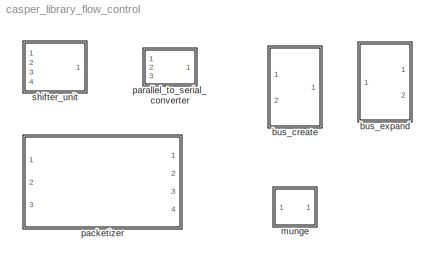
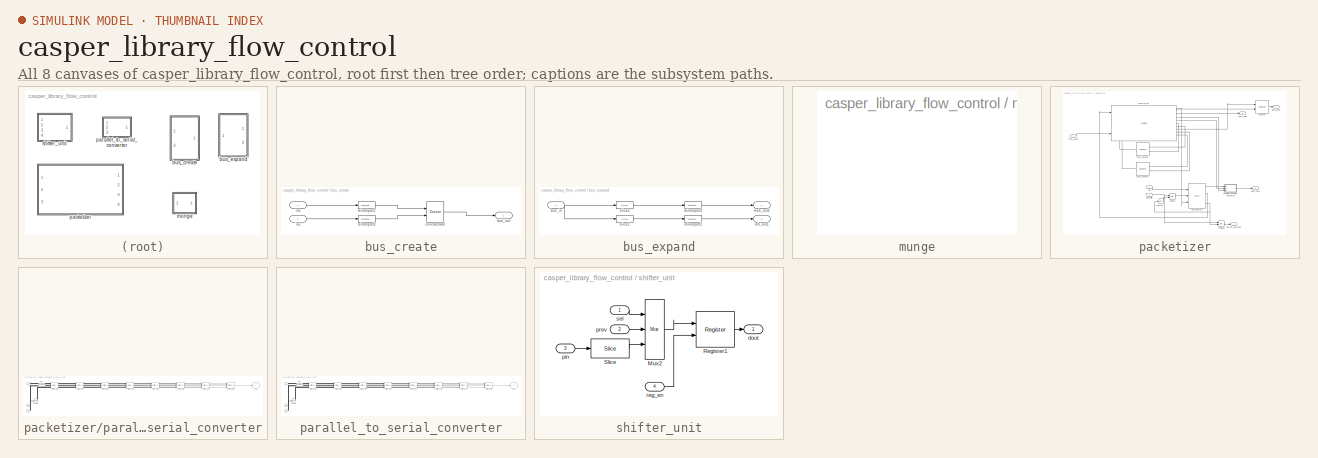
[diagram: thumbnail index - all 8 canvases of the model, root first then tree order]
MODEL casper_library_flow_control
KIND library
BLOCK [SubSystem] bus_create
  FunctionWithSeparateData = off
  MaskEnableString = on
  MaskHideContents = off
  MaskIconFrame = on
  MaskIconOpaque = on
  MaskIconRotate = none
  MaskIconUnits = autoscale
  MaskInitialization = bus_create_init(gcb,...\n    'inputNum', inputNum);
  MaskPromptString = Number of inputs:
  MaskStyleString = edit
  MaskToolTipString = on
  MaskTunableValueString = on
  MaskType = bus_create
  MaskValueString = 2
  MaskVariables = inputNum=@1;
  MaskVisibilityString = on
  MinAlgLoopOccurrences = off
  Opaque = off
  Ports = [2, 1]
  PropExecContextOutsideSubsystem = off
  RTWSystemCode = Auto
  UserData = DataTag0
  UserDataPersistent = on
BLOCK [Outport] bus_create/bus_out
  IconDisplay = Port number
BLOCK [Reference] bus_create/concatenate  REF=xbsIndex_r4/Concat
  Ports = [2, 1]
  SourceBlock = xbsIndex_r4/Concat
  SourceType = Xilinx Bus Concatenator Block
  block_type = concat
  block_version = 11.4
  dbl_ovrd = off
  has_advanced_control = 0
  infoedit = Concatenates two or more inputs.  Output will be cast to an unsigned value with the binary point at zero.
  num_inputs = 2
  sg_icon_stat = 50,60,2,1,white,blue,0,16398980,right,,[ ],[ ]
  sg_mask_display = fprintf('','COMMENT: begin icon graphics');\npatch([0 50 50 0 0 ],[0 0 60 60 0 ],[0.77 0.82 0.91 ]);\nplot([0 50 50 0 0 ],[0 0 60 60 0 ]);\npatch([9.425 19.54 26.54 33.54 40.54 26.54 16.425 9.425 ],[37.77 37.77 44.77 37.77 44.77 44.77 44.77 37.77 ],[1 1 1 ]);\npatch([16.425 26.54 19.54 9.425 16.425 ],[30.77 30.77 37.77 37.77 30.77 ],[0.931 0.946 0.973 ]);\npatch([9.425 19.54 26.54 16.425 9.425 ],[...<+435ch>
  sggui_pos = -1,-1,-1,-1
BLOCK [Inport] bus_create/in1
  IconDisplay = Port number
BLOCK [Inport] bus_create/in2
  IconDisplay = Port number
  Port = 2
BLOCK [Reference] bus_create/reinterpret1  REF=xbsIndex_r4/Reinterpret
  Ports = [1, 1]
  SourceBlock = xbsIndex_r4/Reinterpret
  SourceType = Xilinx Type Reinterpreter Block
  arith_type = Unsigned
  bin_pt = 0
  block_type = reinterpret
  block_version = 11.4
  force_arith_type = on
  force_bin_pt = on
  has_advanced_control = 0
  infoedit = Changes signal type without altering the binary representation.   You can changed the signal between signed and unsigned, and relocate the binary point.<br><br>Hardware notes: In hardware this block costs nothing.<br><br>Example:  Suppose the input is 6 bits wide, signed, with 2 fractional bits, and the output is forced to unsigned with 0 fractional bits.  Then an input of -2.0 (1110.00 in binary ...<+59ch>
  sg_icon_stat = 50,20,1,1,white,blue,0,6b04d0b0,right,,[ ],[ ]
  sg_mask_display = fprintf('','COMMENT: begin icon graphics');\npatch([0 50 50 0 0 ],[0 0 20 20 0 ],[0.77 0.82 0.91 ]);\nplot([0 50 50 0 0 ],[0 0 20 20 0 ]);\npatch([20.55 23.44 25.44 27.44 29.44 25.44 22.55 20.55 ],[12.22 12.22 14.22 12.22 14.22 14.22 14.22 12.22 ],[1 1 1 ]);\npatch([22.55 25.44 23.44 20.55 22.55 ],[10.22 10.22 12.22 12.22 10.22 ],[0.931 0.946 0.973 ]);\npatch([20.55 23.44 25.44 22.55 20.55 ],[8.22...<+314ch>
  sggui_pos = -1,-1,-1,-1
BLOCK [Reference] bus_create/reinterpret2  REF=xbsIndex_r4/Reinterpret
  Ports = [1, 1]
  SourceBlock = xbsIndex_r4/Reinterpret
  SourceType = Xilinx Type Reinterpreter Block
  arith_type = Unsigned
  bin_pt = 0
  block_type = reinterpret
  block_version = 11.4
  force_arith_type = on
  force_bin_pt = on
  has_advanced_control = 0
  infoedit = Changes signal type without altering the binary representation.   You can changed the signal between signed and unsigned, and relocate the binary point.<br><br>Hardware notes: In hardware this block costs nothing.<br><br>Example:  Suppose the input is 6 bits wide, signed, with 2 fractional bits, and the output is forced to unsigned with 0 fractional bits.  Then an input of -2.0 (1110.00 in binary ...<+59ch>
  sg_icon_stat = 50,20,1,1,white,blue,0,6b04d0b0,right,,[ ],[ ]
  sg_mask_display = fprintf('','COMMENT: begin icon graphics');\npatch([0 50 50 0 0 ],[0 0 20 20 0 ],[0.77 0.82 0.91 ]);\nplot([0 50 50 0 0 ],[0 0 20 20 0 ]);\npatch([20.55 23.44 25.44 27.44 29.44 25.44 22.55 20.55 ],[12.22 12.22 14.22 12.22 14.22 14.22 14.22 12.22 ],[1 1 1 ]);\npatch([22.55 25.44 23.44 20.55 22.55 ],[10.22 10.22 12.22 12.22 10.22 ],[0.931 0.946 0.973 ]);\npatch([20.55 23.44 25.44 22.55 20.55 ],[8.22...<+314ch>
  sggui_pos = 281,224,671,460
BLOCK [SubSystem] bus_expand
  AttributesFormatString = 2 outputs
  FunctionWithSeparateData = off
  MaskCallbackString = bus_expand_callback();||bus_expand_callback();||||bus_expand_callback();||
  MaskDescription = Expands a 'bus' made using a bus_create or Xilinx\nconcat block.\nThe input will be divided into the specified number\nof outputs with the specified arithmetic types.\nDivisions are made from most significant bit.
  MaskEnableString = on,on,on,on,on,on,on,off,off
  MaskHideContents = off
  MaskIconFrame = on
  MaskIconOpaque = off
  MaskIconRotate = none
  MaskIconUnits = autoscale
  MaskInitialization = bus_expand_init(gcb,...\n    'mode', mode, ...\n    'outputNum', outputNum, ...\n    'outputWidth', outputWidth, ...\n    'outputBinaryPt', outputBinaryPt, ...\n    'outputArithmeticType', outputArithmeticType, ...\n    'show_format', show_format, ...\n    'outputToWorkspace', outputToWorkspace, ...\n    'variablePrefix', variablePrefix, ...\n    'outputToModelAsWell', outputToModelAsWell);
  MaskPromptString = Mode:|Number of outputs:|Output width:|Output binary point position:|Output arithmetic type (ufix=0, fix=1, bool=2):|Print format string?|Output to workspace?|Variable name prefix:|Output to model as well?
  MaskStyleString = popup(divisions of equal size|divisions of arbitrary size),edit,edit,edit,edit,checkbox,checkbox,edit,checkbox
  MaskToolTipString = on,on,on,on,on,on,on,on,on
  MaskTunableValueString = on,on,on,on,on,on,on,on,on
  MaskType = bus_expand
  MaskValueString = divisions of equal size|2|16|0|0|off|off|out|on
  MaskVariables = mode=&1;outputNum=@2;outputWidth=@3;outputBinaryPt=@4;outputArithmeticType=@5;show_format=&6;outputToWorkspace=&7;variablePrefix=&8;outputToModelAsWell=&9;
  MaskVisibilityString = on,on,on,on,on,on,on,on,on
  MinAlgLoopOccurrences = off
  Opaque = off
  Ports = [1, 2]
  PropExecContextOutsideSubsystem = off
  RTWSystemCode = Auto
  UserData = DataTag1
  UserDataPersistent = on
BLOCK [Inport] bus_expand/bus_in
  IconDisplay = Port number
BLOCK [Outport] bus_expand/lsb_out1
  IconDisplay = Port number
  Port = 2
BLOCK [Outport] bus_expand/msb_out2
  IconDisplay = Port number
BLOCK [Reference] bus_expand/reinterpret1  REF=xbsIndex_r4/Reinterpret
  Ports = [1, 1]
  SourceBlock = xbsIndex_r4/Reinterpret
  SourceType = Xilinx Type Reinterpreter Block
  arith_type = Unsigned
  bin_pt = 0
  block_type = reinterpret
  force_arith_type = on
  force_bin_pt = on
  has_advanced_control = 0
  infoedit = Changes signal type without altering the binary representation.   You can change the signal between signed and unsigned, and relocate the binary point.<br><br>Hardware notes: In hardware this block costs nothing.<br><br>Example:  Suppose the input is 6 bits wide, signed, with 2 fractional bits, and the output is forced to unsigned with 0 fractional bits.  Then an input of -2.0 (1110.00 in binary 2...<+58ch>
  sg_icon_stat = 50,20,1,1,white,blue,0,6b04d0b0,right,,[ ],[ ]
  sg_mask_display = fprintf('','COMMENT: begin icon graphics');\npatch([0 50 50 0 0 ],[0 0 20 20 0 ],[0.77 0.82 0.91 ]);\nplot([0 50 50 0 0 ],[0 0 20 20 0 ]);\npatch([20.55 23.44 25.44 27.44 29.44 25.44 22.55 20.55 ],[12.22 12.22 14.22 12.22 14.22 14.22 14.22 12.22 ],[1 1 1 ]);\npatch([22.55 25.44 23.44 20.55 22.55 ],[10.22 10.22 12.22 12.22 10.22 ],[0.931 0.946 0.973 ]);\npatch([20.55 23.44 25.44 22.55 20.55 ],[8.22...<+312ch>
  sggui_pos = -1,-1,-1,-1
BLOCK [Reference] bus_expand/reinterpret2  REF=xbsIndex_r4/Reinterpret
  Ports = [1, 1]
  SourceBlock = xbsIndex_r4/Reinterpret
  SourceType = Xilinx Type Reinterpreter Block
  arith_type = Unsigned
  bin_pt = 0
  block_type = reinterpret
  force_arith_type = on
  force_bin_pt = on
  has_advanced_control = 0
  infoedit = Changes signal type without altering the binary representation.   You can change the signal between signed and unsigned, and relocate the binary point.<br><br>Hardware notes: In hardware this block costs nothing.<br><br>Example:  Suppose the input is 6 bits wide, signed, with 2 fractional bits, and the output is forced to unsigned with 0 fractional bits.  Then an input of -2.0 (1110.00 in binary 2...<+58ch>
  sg_icon_stat = 50,20,1,1,white,blue,0,6b04d0b0,right,,[ ],[ ]
  sg_mask_display = fprintf('','COMMENT: begin icon graphics');\npatch([0 50 50 0 0 ],[0 0 20 20 0 ],[0.77 0.82 0.91 ]);\nplot([0 50 50 0 0 ],[0 0 20 20 0 ]);\npatch([20.55 23.44 25.44 27.44 29.44 25.44 22.55 20.55 ],[12.22 12.22 14.22 12.22 14.22 14.22 14.22 12.22 ],[1 1 1 ]);\npatch([22.55 25.44 23.44 20.55 22.55 ],[10.22 10.22 12.22 12.22 10.22 ],[0.931 0.946 0.973 ]);\npatch([20.55 23.44 25.44 22.55 20.55 ],[8.22...<+312ch>
  sggui_pos = -1,-1,-1,-1
BLOCK [Reference] bus_expand/slice1  REF=xbsIndex_r4/Slice
  Ports = [1, 1]
  SourceBlock = xbsIndex_r4/Slice
  SourceType = Xilinx Bit Slice Extractor Block
  base0 = LSB of Input
  base1 = MSB of Input
  bit0 = 0
  bit1 = -16
  block_type = slice
  boolean_output = off
  dbl_ovrd = off
  has_advanced_control = 0
  infoedit = Extracts a given range of bits from each input sample and presents it at the output.  The output type is ordinarily unsigned with binary point at zero, but can be Boolean when the slice is one bit wide.<br><br>Hardware notes: In hardware this block costs nothing.
  mode = Upper Bit Location + Width
  nbits = 16
  sg_icon_stat = 50,20,1,1,white,blue,0,1fd851a7,right,,[ ],[ ]
  sg_mask_display = fprintf('','COMMENT: begin icon graphics');\npatch([0 50 50 0 0 ],[0 0 20 20 0 ],[0.77 0.82 0.91 ]);\nplot([0 50 50 0 0 ],[0 0 20 20 0 ]);\npatch([20.55 23.44 25.44 27.44 29.44 25.44 22.55 20.55 ],[12.22 12.22 14.22 12.22 14.22 14.22 14.22 12.22 ],[1 1 1 ]);\npatch([22.55 25.44 23.44 20.55 22.55 ],[10.22 10.22 12.22 12.22 10.22 ],[0.931 0.946 0.973 ]);\npatch([20.55 23.44 25.44 22.55 20.55 ],[8.22...<+321ch>
  sggui_pos = 20,45,543,459
BLOCK [Reference] bus_expand/slice2  REF=xbsIndex_r4/Slice
  Ports = [1, 1]
  SourceBlock = xbsIndex_r4/Slice
  SourceType = Xilinx Bit Slice Extractor Block
  base0 = LSB of Input
  base1 = MSB of Input
  bit0 = 0
  bit1 = 0
  block_type = slice
  boolean_output = off
  dbl_ovrd = off
  has_advanced_control = 0
  infoedit = Extracts a given range of bits from each input sample and presents it at the output.  The output type is ordinarily unsigned with binary point at zero, but can be Boolean when the slice is one bit wide.<br><br>Hardware notes: In hardware this block costs nothing.
  mode = Upper Bit Location + Width
  nbits = 16
  sg_icon_stat = 50,20,1,1,white,blue,0,1fd851a7,right,,[ ],[ ]
  sg_mask_display = fprintf('','COMMENT: begin icon graphics');\npatch([0 50 50 0 0 ],[0 0 20 20 0 ],[0.77 0.82 0.91 ]);\nplot([0 50 50 0 0 ],[0 0 20 20 0 ]);\npatch([20.55 23.44 25.44 27.44 29.44 25.44 22.55 20.55 ],[12.22 12.22 14.22 12.22 14.22 14.22 14.22 12.22 ],[1 1 1 ]);\npatch([22.55 25.44 23.44 20.55 22.55 ],[10.22 10.22 12.22 12.22 10.22 ],[0.931 0.946 0.973 ]);\npatch([20.55 23.44 25.44 22.55 20.55 ],[8.22...<+321ch>
  sggui_pos = 20,45,543,459
BLOCK [SubSystem] munge
  FunctionWithSeparateData = off
  MaskCallbackString = ||||
  MaskDescription = Splits an input bus into the specified number of divisions and then recombines them in the order specified (most significant division = 0,least = number divisions-1)
  MaskEnableString = on,on,on,on,on
  MaskHideContents = off
  MaskIconFrame = on
  MaskIconOpaque = on
  MaskIconRotate = none
  MaskIconUnits = autoscale
  MaskInitialization = munge_init(gcb, ...\n    'divisions', divisions, ...\n    'div_size', div_size, ...\n    'order', order, ...\n    'arith_type_out', arith_type_out, ...\n    'bin_pt_out', bin_pt_out);
  MaskPromptString = Number of divisions|Division size (bits)|Division packing order|Output arithmetic type|Output binary point
  MaskStyleString = edit,edit,edit,popup(Unsigned|Signed  (2's comp)|Floating-point),edit
  MaskToolTipString = on,on,on,on,on
  MaskTunableValueString = on,on,on,on,on
  MaskType = munge
  MaskValueString = 0|1|0|Unsigned|0
  MaskVariables = divisions=@1;div_size=@2;order=@3;arith_type_out=&4;bin_pt_out=@5;
  MaskVisibilityString = on,on,on,on,on
  MinAlgLoopOccurrences = off
  Opaque = off
  Ports = []
  PropExecContextOutsideSubsystem = off
  RTWSystemCode = Auto
  UserData = DataTag2
  UserDataPersistent = on
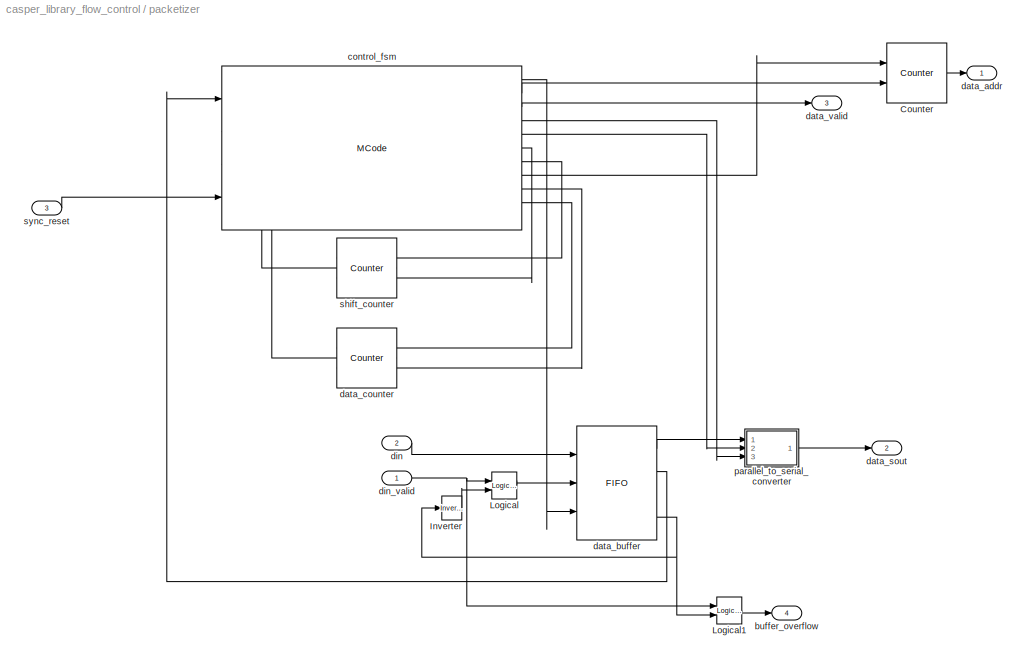
BLOCK [SubSystem] packetizer
  AttributesFormatString = Parallel Input Width: 512\nSerial Output Width: 64
  FunctionWithSeparateData = off
  MaskCallbackString = |||
  MaskDescription = This block is intended to serialize data that is 'bursty', that is,\nthe average data rate is small but per cycle the data is highly\nparallel and can contain many points simultaneously.  This situation\nis common with the streaming CASPER FFTs and related blocks. \n\nThe serialization buffers the data when valid and independently \nserializes the data when the buffer is non-empty.  For convenienc...<+485ch>
  MaskEnableString = on,on,on,on
  MaskHideContents = off
  MaskIconFrame = on
  MaskIconOpaque = on
  MaskIconRotate = none
  MaskIconUnits = autoscale
  MaskInitialization = packetizer_init(gcb, 'pin_width', pin_width, 'sout_width', sout_width, 'total_words', total_words, 'fifo_depth', fifo_depth)\n% packetizer_init(gcb, ...\n%     'pin_width', pin_width, ...\n%     'sout_width', sout_width, ...\n%   %  'fifo_depth', fifo_depth, ...\n%     'total_words', total_words);
  MaskPromptString = Parallel Input Width|Serial Output Width|FIFO depth|Total number of data points
  MaskStyleString = edit,edit,popup(16|32|64|128|256|512|1K|2K|4K|8K|16K|32K|64K),edit
  MaskToolTipString = on,on,on,on
  MaskTunableValueString = on,on,on,on
  MaskType = packetizer
  MaskValueString = 512|64|64|64
  MaskVariables = pin_width=@1;sout_width=@2;fifo_depth=&3;total_words=@4;
  MaskVisibilityString = on,on,on,on
  MinAlgLoopOccurrences = off
  Opaque = off
  Ports = [3, 4]
  PropExecContextOutsideSubsystem = off
  RTWSystemCode = Auto
  UserData = DataTag3
  UserDataPersistent = on
BLOCK [Reference] packetizer/Counter  REF=xbsIndex_r4/Counter
  Ports = [2, 1]
  SourceBlock = xbsIndex_r4/Counter
  SourceType = Xilinx Counter Block
  arith_type = Unsigned
  bin_pt = 0
  block_type = counter
  block_version = 10.1.3
  cnt_by_val = 1
  cnt_to = Inf
  cnt_type = Free Running
  dbl_ovrd = off
  en = on
  explicit_period = on
  has_advanced_control = 0
  implementation = Fabric
  infoedit = Hardware notes: Free running counters are the least expensive in hardware.  A count limited counter is implemented by combining a counter with a comparator.
  load_pin = off
  n_bits = 11
  operation = Up
  period = 1
  rst = on
  sg_icon_stat = 60,60,2,1,white,blue,0,ae3608d6,right,,[ ],[ ]
  sg_mask_display = fprintf('','COMMENT: begin icon graphics');\npatch([0 60 60 0 0 ],[0 0 60 60 0 ],[0.77 0.82 0.91 ]);\nplot([0 60 60 0 0 ],[0 0 60 60 0 ]);\npatch([12.2 23.76 31.76 39.76 47.76 31.76 20.2 12.2 ],[38.88 38.88 46.88 38.88 46.88 46.88 46.88 38.88 ],[1 1 1 ]);\npatch([20.2 31.76 23.76 12.2 20.2 ],[30.88 30.88 38.88 38.88 30.88 ],[0.931 0.946 0.973 ]);\npatch([12.2 23.76 31.76 20.2 12.2 ],[22.88 22.88 3...<+423ch>  <repeated x3 — deduplicated; at blocks: Counter, data_counter, shift_counter>
  sggui_pos = 20,20,348,619
  start_count = 0
  use_behavioral_HDL = on
  use_rpm = off
  xl_area = [0,0,0,0,0,0,0]
  xl_use_area = off
BLOCK [Reference] packetizer/Inverter  REF=xbsIndex_r4/Inverter
  Ports = [1, 1]
  SourceBlock = xbsIndex_r4/Inverter
  SourceType = Xilinx Inverter Block
  block_type = inv
  block_version = 10.1.3
  dbl_ovrd = off
  en = off
  has_advanced_control = 0
  infoedit = Bitwise logical negation (one's complement) operator.
  latency = 0
  sg_icon_stat = 20,24,1,1,white,blue,0,267846e5,right,,[ ],[ ]
  sg_mask_display = fprintf('','COMMENT: begin icon graphics');\npatch([0 20 20 0 0 ],[0 0 24 24 0 ],[0.77 0.82 0.91 ]);\nplot([0 20 20 0 0 ],[0 0 24 24 0 ]);\npatch([5.55 8.44 10.44 12.44 14.44 10.44 7.55 5.55 ],[14.22 14.22 16.22 14.22 16.22 16.22 16.22 14.22 ],[1 1 1 ]);\npatch([7.55 10.44 8.44 5.55 7.55 ],[12.22 12.22 14.22 14.22 12.22 ],[0.931 0.946 0.973 ]);\npatch([5.55 8.44 10.44 7.55 5.55 ],[10.22 10.22 12.2...<+294ch>
  sggui_pos = -1,-1,-1,-1
  xl_area = [0,0,0,0,0,0,0]
  xl_use_area = off
BLOCK [Reference] packetizer/Logical  REF=xbsIndex_r4/Logical
  Ports = [2, 1]
  SourceBlock = xbsIndex_r4/Logical
  SourceType = Xilinx Logical Block Block
  align_bp = on
  arith_type = Unsigned
  bin_pt = 0
  block_type = logical
  block_version = 10.1.3
  dbl_ovrd = off
  en = off
  has_advanced_control = 0
  inputs = 2
  latency = 0
  logical_function = AND
  n_bits = 16
  precision = Full
  sg_icon_stat = 25,27,2,1,white,blue,0,83a4b621,right,,[ ],[ ]
  sg_mask_display = fprintf('','COMMENT: begin icon graphics');\npatch([0 25 25 0 0 ],[0 0 27 27 0 ],[0.77 0.82 0.91 ]);\nplot([0 25 25 0 0 ],[0 0 27 27 0 ]);\npatch([5.325 9.66 12.66 15.66 18.66 12.66 8.325 5.325 ],[16.33 16.33 19.33 16.33 19.33 19.33 19.33 16.33 ],[1 1 1 ]);\npatch([8.325 12.66 9.66 5.325 8.325 ],[13.33 13.33 16.33 16.33 13.33 ],[0.931 0.946 0.973 ]);\npatch([5.325 9.66 12.66 8.325 5.325 ],[10.33 1...<+308ch>
  sggui_pos = 20,20,348,261
  xl_area = [0,0,0,0,0,0,0]
  xl_use_area = off
BLOCK [Reference] packetizer/Logical1  REF=xbsIndex_r4/Logical
  Ports = [2, 1]
  SourceBlock = xbsIndex_r4/Logical
  SourceType = Xilinx Logical Block Block
  align_bp = on
  arith_type = Unsigned
  bin_pt = 0
  block_type = logical
  block_version = 10.1.3
  dbl_ovrd = off
  en = off
  has_advanced_control = 0
  inputs = 2
  latency = 0
  logical_function = AND
  n_bits = 16
  precision = Full
  sg_icon_stat = 25,27,2,1,white,blue,0,83a4b621,right,,[ ],[ ]
  sg_mask_display = fprintf('','COMMENT: begin icon graphics');\npatch([0 25 25 0 0 ],[0 0 27 27 0 ],[0.77 0.82 0.91 ]);\nplot([0 25 25 0 0 ],[0 0 27 27 0 ]);\npatch([5.325 9.66 12.66 15.66 18.66 12.66 8.325 5.325 ],[16.33 16.33 19.33 16.33 19.33 19.33 19.33 16.33 ],[1 1 1 ]);\npatch([8.325 12.66 9.66 5.325 8.325 ],[13.33 13.33 16.33 16.33 13.33 ],[0.931 0.946 0.973 ]);\npatch([5.325 9.66 12.66 8.325 5.325 ],[10.33 1...<+308ch>
  sggui_pos = 20,20,348,261
  xl_area = [0,0,0,0,0,0,0]
  xl_use_area = off
BLOCK [Outport] packetizer/buffer_overflow
  IconDisplay = Port number
  Port = 4
BLOCK [Reference] packetizer/control_fsm  REF=xbsIndex_r4/MCode
  Ports = [4, 11]
  SourceBlock = xbsIndex_r4/MCode
  SourceType = Xilinx MCode Block Block
  block_type = mcode
  block_version = 10.1.3
  dbl_ovrd = off
  defparams = {'data_per_word',7, 'n_words', 63 }
  enable_debug = off
  enable_stdout = off
  explicit_period = on
  has_advanced_control = 0
  hide_port_list = {}
  infoedit = Pass input values to a MATLAB function for evaluation in Xilinx fixed-point type. The input ports of the block are input arguments of the function. The output ports of the block are output arguments of the function.
  inputsTable = {'boundInpExpr'=>['','','7','',' 63 ',''],'inputs'=>['fifo_empty','shift_count','data_per_word','data_count','n_words','sync_reset']}
  mfname = packetizer_fsm
  outputsTable = {'outputs'=>['fifo_re','bram_addr_en','bram_we','serializer_shift','serializer_ld','shift_count_en','shift_count_rst','bram_addr_rst','data_count_en','data_count_rst'],'suppressOut'=>['off','off','off','off','off','off','off','off','off','off']}
  period = 1
  sg_icon_stat = 300,164,4,11,white,blue,0,8626222c,right,,[ ],[ ]
  sg_mask_display = fprintf('','COMMENT: begin icon graphics');\npatch([0 300 300 0 0 ],[0 0 164 164 0 ],[0.77 0.82 0.91 ]);\nplot([0 300 300 0 0 ],[0 0 164 164 0 ]);\npatch([98.825 132.06 155.06 178.06 201.06 155.06 121.825 98.825 ],[107.53 107.53 130.53 107.53 130.53 130.53 130.53 107.53 ],[1 1 1 ]);\npatch([121.825 155.06 132.06 98.825 121.825 ],[84.53 84.53 107.53 107.53 84.53 ],[0.931 0.946 0.973 ]);\npatch([98....<+1207ch>
  sggui_pos = 20,20,348,449
  suppress_output = 1
  xl_area = [0,0,0,0,0,0,0]
  xl_use_area = off
BLOCK [Outport] packetizer/data_addr
  IconDisplay = Port number
BLOCK [Reference] packetizer/data_buffer  REF=xbsIndex_r4/FIFO
  Ports = [3, 4]
  SourceBlock = xbsIndex_r4/FIFO
  SourceType = Xilinx FIFO Block Block
  almost_empty_thresh = 2
  almost_full_thresh = 14
  block_type = fifo
  block_version = 10.1.3
  dbl_ovrd = off
  depth = 64
  embedded_registers = off
  en = off
  explicit_period = off
  has_advanced_control = 0
  infoedit1 = Available only for V4, V5, V6, V7, K7, A7 and Zynq devices.
  mem_type = Block RAM
  percent_nbits = 1
  performance_options = Standard_FIFO
  rst = off
  sg_icon_stat = 80,114,3,4,white,blue,0,2152acb9,right,,[ ],[ ]
  sg_mask_display = fprintf('','COMMENT: begin icon graphics');\npatch([0 80 80 0 0 ],[0 0 114 114 0 ],[0.77 0.82 0.91 ]);\nplot([0 80 80 0 0 ],[0 0 114 114 0 ]);\npatch([15.525 31.42 42.42 53.42 64.42 42.42 26.525 15.525 ],[69.21 69.21 80.21 69.21 80.21 80.21 80.21 69.21 ],[1 1 1 ]);\npatch([26.525 42.42 31.42 15.525 26.525 ],[58.21 58.21 69.21 69.21 58.21 ],[0.931 0.946 0.973 ]);\npatch([15.525 31.42 42.42 26.525 1...<+622ch>
  sggui_pos = 20,20,348,419
  use_almost_empty = off
  use_almost_full = off
  use_dcount = off
  use_percent_full_port = on
  xl_area = [0,0,0,0,0,0,0]
  xl_use_area = off
BLOCK [Reference] packetizer/data_counter  REF=xbsIndex_r4/Counter
  Ports = [2, 1]
  SourceBlock = xbsIndex_r4/Counter
  SourceType = Xilinx Counter Block
  arith_type = Unsigned
  bin_pt = 0
  block_type = counter
  block_version = 10.1.3
  cnt_by_val = 1
  cnt_to = Inf
  cnt_type = Free Running
  dbl_ovrd = off
  en = on
  explicit_period = on
  has_advanced_control = 0
  implementation = Fabric
  infoedit = Hardware notes: Free running counters are the least expensive in hardware.  A count limited counter is implemented by combining a counter with a comparator.
  load_pin = off
  n_bits = 7
  operation = Up
  period = 1
  rst = on
  sg_icon_stat = 60,60,2,1,white,blue,0,ae3608d6,right,,[ ],[ ]
  sggui_pos = 20,20,348,619
  start_count = 0
  use_behavioral_HDL = on
  use_rpm = off
  xl_area = [0,0,0,0,0,0,0]
  xl_use_area = off
BLOCK [Outport] packetizer/data_sout
  IconDisplay = Port number
  Port = 2
BLOCK [Outport] packetizer/data_valid
  IconDisplay = Port number
  Port = 3
BLOCK [Inport] packetizer/din
  IconDisplay = Port number
  Port = 2
BLOCK [Inport] packetizer/din_valid
  IconDisplay = Port number
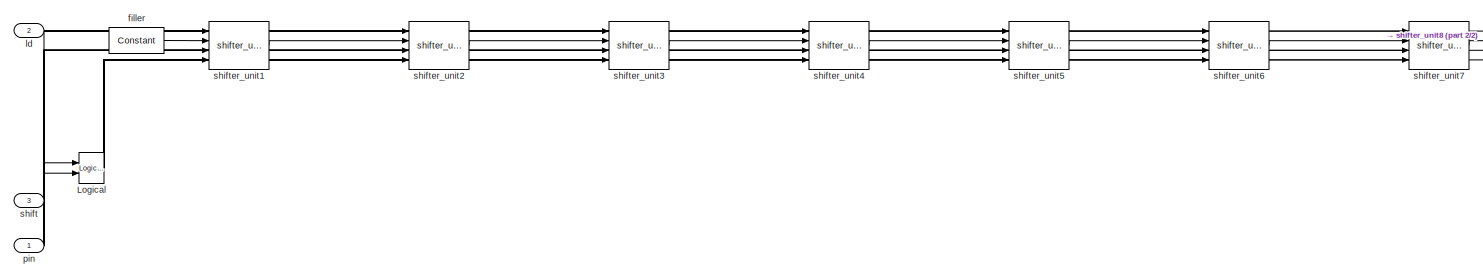
[diagram: packetizer/parallel_to_serial_converter - part 1/2, most of the canvas]
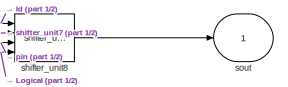
[diagram: packetizer/parallel_to_serial_converter - part 2/2, top right region]
BLOCK [SubSystem] packetizer/parallel_to_serial_converter
  AncestorBlock = casper_library_flow_control/parallel_to_serial_converter
  FunctionWithSeparateData = off
  MaskCallbackString = |
  MaskDescription = This block takes as input a parallel bus of specified width. \nWhen the load signal 'ld' is asserted, this data is broken into \npieces of width specified by the serial output width and \nstored into different registers chained to form a shift register.\nIf the 'shift' input is subsequently asserted, the shift register\nreturns as output a new piece of data of width sout_width.  This data\nis the ...<+333ch>
  MaskEnableString = on,on
  MaskHideContents = off
  MaskIconFrame = on
  MaskIconOpaque = on
  MaskIconRotate = none
  MaskIconUnits = autoscale
  MaskInitialization = parallel_to_serial_converter_init(gcb, ...\n    'pin_width', pin_width, ...\n    'sout_width', sout_width);
  MaskPromptString = Parallel Input Width|Serial Output Width
  MaskStyleString = edit,edit
  MaskToolTipString = on,on
  MaskTunableValueString = on,on
  MaskType = parallel_to_serial_converter
  MaskValueString = 512|64
  MaskVariables = pin_width=@1;sout_width=@2;
  MaskVisibilityString = on,on
  MinAlgLoopOccurrences = off
  Opaque = off
  Ports = [3, 1]
  PropExecContextOutsideSubsystem = off
  RTWSystemCode = Auto
  UserData = DataTag4
  UserDataPersistent = on
BLOCK [Reference] packetizer/parallel_to_serial_converter/Logical  REF=xbsIndex_r4/Logical
  Ports = [2, 1]
  SourceBlock = xbsIndex_r4/Logical
  SourceType = Xilinx Logical Block Block
  align_bp = on
  arith_type = Unsigned
  bin_pt = 0
  block_type = logical
  block_version = 10.1.3
  dbl_ovrd = off
  en = off
  has_advanced_control = 0
  inputs = 2
  latency = 0
  logical_function = OR
  n_bits = 16
  precision = Full
  sg_icon_stat = 25,31,2,1,white,blue,0,7ede7d88,right,,[ ],[ ]
  sg_mask_display = fprintf('','COMMENT: begin icon graphics');\npatch([0 25 25 0 0 ],[0 0 31 31 0 ],[0.77 0.82 0.91 ]);\nplot([0 25 25 0 0 ],[0 0 31 31 0 ]);\npatch([5.325 9.66 12.66 15.66 18.66 12.66 8.325 5.325 ],[18.33 18.33 21.33 18.33 21.33 21.33 21.33 18.33 ],[1 1 1 ]);\npatch([8.325 12.66 9.66 5.325 8.325 ],[15.33 15.33 18.33 18.33 15.33 ],[0.931 0.946 0.973 ]);\npatch([5.325 9.66 12.66 8.325 5.325 ],[12.33 1...<+307ch>
  sggui_pos = 20,20,348,261
  xl_area = [0,0,0,0,0,0,0]
  xl_use_area = off
BLOCK [Reference] packetizer/parallel_to_serial_converter/filler  REF=xbsIndex_r4/Constant
  Ports = [0, 1]
  SourceBlock = xbsIndex_r4/Constant
  SourceType = Xilinx Constant Block Block
  arith_type = Unsigned
  bin_pt = 0
  block_type = constant
  block_version = 10.1.3
  carry = CIN
  const = 0
  dbl_ovrd = off
  dsp48_infoedit = The use of this block for DSP48 instructions is deprecated.  Please use the Opmode block.
  equ = P=C
  exp_width = 8
  explicit_period = on
  frac_width = 24
  gui_display_data_type = Fixed-point
  has_advanced_control = 0
  inp1 = P
  inp2 = PCIN>>17
  n_bits = sout_width
  opr = +
  opselect = C
  period = 1
  preci_type = Single
  sg_icon_stat = 55,26,0,1,white,blue,0,bf4ddd8b,right,,[ ],[ ]
  sg_mask_display = fprintf('','COMMENT: begin icon graphics');\npatch([0 55 55 0 0 ],[0 0 26 26 0 ],[0.77 0.82 0.91 ]);\nplot([0 55 55 0 0 ],[0 0 26 26 0 ]);\npatch([20.325 24.66 27.66 30.66 33.66 27.66 23.325 20.325 ],[16.33 16.33 19.33 16.33 19.33 19.33 19.33 16.33 ],[1 1 1 ]);\npatch([23.325 27.66 24.66 20.325 23.325 ],[13.33 13.33 16.33 16.33 13.33 ],[0.931 0.946 0.973 ]);\npatch([20.325 24.66 27.66 23.325 20.32...<+333ch>
  sggui_pos = 20,20,400,346
BLOCK [Inport] packetizer/parallel_to_serial_converter/ld
  IconDisplay = Port number
  Port = 2
BLOCK [Inport] packetizer/parallel_to_serial_converter/pin
  IconDisplay = Port number
BLOCK [Inport] packetizer/parallel_to_serial_converter/shift
  IconDisplay = Port number
  Port = 3
BLOCK [Reference] packetizer/parallel_to_serial_converter/shifter_unit1  REF=casper_library_flow_control/shifter_unit  (lib defined in mdl_5c20b51ea67c, mdl_83efbf0f8acb, +3 more)
  Ports = [4, 1]
  SourceBlock = casper_library_flow_control/shifter_unit
  SourceType = shifter_unit
  data_width = 64
  pin_offset = 0
BLOCK [Reference] packetizer/parallel_to_serial_converter/shifter_unit2  REF=casper_library_flow_control/shifter_unit  (lib defined in mdl_5c20b51ea67c, mdl_83efbf0f8acb, +3 more)
  Ports = [4, 1]
  SourceBlock = casper_library_flow_control/shifter_unit
  SourceType = shifter_unit
  data_width = 64
  pin_offset = 64
BLOCK [Reference] packetizer/parallel_to_serial_converter/shifter_unit3  REF=casper_library_flow_control/shifter_unit  (lib defined in mdl_5c20b51ea67c, mdl_83efbf0f8acb, +3 more)
  Ports = [4, 1]
  SourceBlock = casper_library_flow_control/shifter_unit
  SourceType = shifter_unit
  data_width = 64
  pin_offset = 128
BLOCK [Reference] packetizer/parallel_to_serial_converter/shifter_unit4  REF=casper_library_flow_control/shifter_unit  (lib defined in mdl_5c20b51ea67c, mdl_83efbf0f8acb, +3 more)
  Ports = [4, 1]
  SourceBlock = casper_library_flow_control/shifter_unit
  SourceType = shifter_unit
  data_width = 64
  pin_offset = 192
BLOCK [Reference] packetizer/parallel_to_serial_converter/shifter_unit5  REF=casper_library_flow_control/shifter_unit  (lib defined in mdl_5c20b51ea67c, mdl_83efbf0f8acb, +3 more)
  Ports = [4, 1]
  SourceBlock = casper_library_flow_control/shifter_unit
  SourceType = shifter_unit
  data_width = 64
  pin_offset = 256
BLOCK [Reference] packetizer/parallel_to_serial_converter/shifter_unit6  REF=casper_library_flow_control/shifter_unit  (lib defined in mdl_5c20b51ea67c, mdl_83efbf0f8acb, +3 more)
  Ports = [4, 1]
  SourceBlock = casper_library_flow_control/shifter_unit
  SourceType = shifter_unit
  data_width = 64
  pin_offset = 320
BLOCK [Reference] packetizer/parallel_to_serial_converter/shifter_unit7  REF=casper_library_flow_control/shifter_unit  (lib defined in mdl_5c20b51ea67c, mdl_83efbf0f8acb, +3 more)
  Ports = [4, 1]
  SourceBlock = casper_library_flow_control/shifter_unit
  SourceType = shifter_unit
  data_width = 64
  pin_offset = 384
BLOCK [Reference] packetizer/parallel_to_serial_converter/shifter_unit8  REF=casper_library_flow_control/shifter_unit  (lib defined in mdl_5c20b51ea67c, mdl_83efbf0f8acb, +3 more)
  Ports = [4, 1]
  SourceBlock = casper_library_flow_control/shifter_unit
  SourceType = shifter_unit
  data_width = 64
  pin_offset = 448
BLOCK [Outport] packetizer/parallel_to_serial_converter/sout
  IconDisplay = Port number
BLOCK [Reference] packetizer/shift_counter  REF=xbsIndex_r4/Counter
  Ports = [2, 1]
  SourceBlock = xbsIndex_r4/Counter
  SourceType = Xilinx Counter Block
  arith_type = Unsigned
  bin_pt = 0
  block_type = counter
  block_version = 10.1.3
  cnt_by_val = 1
  cnt_to = Inf
  cnt_type = Free Running
  dbl_ovrd = off
  en = on
  explicit_period = on
  has_advanced_control = 0
  implementation = Fabric
  infoedit = Hardware notes: Free running counters are the least expensive in hardware.  A count limited counter is implemented by combining a counter with a comparator.
  load_pin = off
  n_bits = 4
  operation = Up
  period = 1
  rst = on
  sg_icon_stat = 60,60,2,1,white,blue,0,ae3608d6,right,,[ ],[ ]
  sggui_pos = 20,20,348,619
  start_count = 0
  use_behavioral_HDL = on
  use_rpm = off
  xl_area = [0,0,0,0,0,0,0]
  xl_use_area = off
BLOCK [Inport] packetizer/sync_reset
  IconDisplay = Port number
  Port = 3
BLOCK [SubSystem] parallel_to_serial_converter
  FunctionWithSeparateData = off
  MaskCallbackString = |
  MaskDescription = This block takes as input a parallel bus of specified width. \nWhen the load signal 'ld' is asserted, this data is broken into \npieces of width specified by the serial output width and \nstored into different registers chained to form a shift register.\nIf the 'shift' input is subsequently asserted, the shift register\nreturns as output a new piece of data of width sout_width.  This data\nis the ...<+333ch>
  MaskEnableString = on,on
  MaskHideContents = off
  MaskIconFrame = on
  MaskIconOpaque = on
  MaskIconRotate = none
  MaskIconUnits = autoscale
  MaskInitialization = parallel_to_serial_converter_init(gcb, ...\n    'pin_width', pin_width, ...\n    'sout_width', sout_width);
  MaskPromptString = Parallel Input Width|Serial Output Width
  MaskStyleString = edit,edit
  MaskToolTipString = on,on
  MaskTunableValueString = on,on
  MaskType = parallel_to_serial_converter
  MaskValueString = 128|16
  MaskVariables = pin_width=@1;sout_width=@2;
  MaskVisibilityString = on,on
  MinAlgLoopOccurrences = off
  Opaque = off
  Ports = [3, 1]
  PropExecContextOutsideSubsystem = off
  RTWSystemCode = Auto
  UserData = DataTag5
  UserDataPersistent = on
BLOCK [Reference] parallel_to_serial_converter/Logical  REF=xbsIndex_r4/Logical
  Ports = [2, 1]
  SourceBlock = xbsIndex_r4/Logical
  SourceType = Xilinx Logical Block Block
  align_bp = on
  arith_type = Unsigned
  bin_pt = 0
  block_type = logical
  block_version = 10.1.3
  dbl_ovrd = off
  en = off
  has_advanced_control = 0
  inputs = 2
  latency = 0
  logical_function = OR
  n_bits = 16
  precision = Full
  sg_icon_stat = 25,31,2,1,white,blue,0,7ede7d88,right,,[ ],[ ]
  sg_mask_display = fprintf('','COMMENT: begin icon graphics');\npatch([0 25 25 0 0 ],[0 0 31 31 0 ],[0.77 0.82 0.91 ]);\nplot([0 25 25 0 0 ],[0 0 31 31 0 ]);\npatch([5.325 9.66 12.66 15.66 18.66 12.66 8.325 5.325 ],[18.33 18.33 21.33 18.33 21.33 21.33 21.33 18.33 ],[1 1 1 ]);\npatch([8.325 12.66 9.66 5.325 8.325 ],[15.33 15.33 18.33 18.33 15.33 ],[0.931 0.946 0.973 ]);\npatch([5.325 9.66 12.66 8.325 5.325 ],[12.33 1...<+307ch>
  sggui_pos = 20,20,348,261
  xl_area = [0,0,0,0,0,0,0]
  xl_use_area = off
BLOCK [Reference] parallel_to_serial_converter/filler  REF=xbsIndex_r4/Constant
  Ports = [0, 1]
  SourceBlock = xbsIndex_r4/Constant
  SourceType = Xilinx Constant Block Block
  arith_type = Unsigned
  bin_pt = 0
  block_type = constant
  block_version = 10.1.3
  carry = CIN
  const = 0
  dbl_ovrd = off
  dsp48_infoedit = The use of this block for DSP48 instructions is deprecated.  Please use the Opmode block.
  equ = P=C
  exp_width = 8
  explicit_period = on
  frac_width = 24
  gui_display_data_type = Fixed-point
  has_advanced_control = 0
  inp1 = P
  inp2 = PCIN>>17
  n_bits = sout_width
  opr = +
  opselect = C
  period = 1
  preci_type = Single
  sg_icon_stat = 55,26,0,1,white,blue,0,bf4ddd8b,right,,[ ],[ ]
  sg_mask_display = fprintf('','COMMENT: begin icon graphics');\npatch([0 55 55 0 0 ],[0 0 26 26 0 ],[0.77 0.82 0.91 ]);\nplot([0 55 55 0 0 ],[0 0 26 26 0 ]);\npatch([20.325 24.66 27.66 30.66 33.66 27.66 23.325 20.325 ],[16.33 16.33 19.33 16.33 19.33 19.33 19.33 16.33 ],[1 1 1 ]);\npatch([23.325 27.66 24.66 20.325 23.325 ],[13.33 13.33 16.33 16.33 13.33 ],[0.931 0.946 0.973 ]);\npatch([20.325 24.66 27.66 23.325 20.32...<+333ch>
  sggui_pos = 20,20,400,346
BLOCK [Inport] parallel_to_serial_converter/ld
  IconDisplay = Port number
  Port = 2
BLOCK [Inport] parallel_to_serial_converter/pin
  IconDisplay = Port number
BLOCK [Inport] parallel_to_serial_converter/shift
  IconDisplay = Port number
  Port = 3
BLOCK [Reference] parallel_to_serial_converter/shifter_unit1  REF=casper_library_flow_control/shifter_unit  (lib defined in mdl_5c20b51ea67c, mdl_83efbf0f8acb, +3 more)
  Ports = [4, 1]
  SourceBlock = casper_library_flow_control/shifter_unit
  SourceType = shifter_unit
  data_width = 16
  pin_offset = 0
BLOCK [Reference] parallel_to_serial_converter/shifter_unit2  REF=casper_library_flow_control/shifter_unit  (lib defined in mdl_5c20b51ea67c, mdl_83efbf0f8acb, +3 more)
  Ports = [4, 1]
  SourceBlock = casper_library_flow_control/shifter_unit
  SourceType = shifter_unit
  data_width = 16
  pin_offset = 16
BLOCK [Reference] parallel_to_serial_converter/shifter_unit3  REF=casper_library_flow_control/shifter_unit  (lib defined in mdl_5c20b51ea67c, mdl_83efbf0f8acb, +3 more)
  Ports = [4, 1]
  SourceBlock = casper_library_flow_control/shifter_unit
  SourceType = shifter_unit
  data_width = 16
  pin_offset = 32
BLOCK [Reference] parallel_to_serial_converter/shifter_unit4  REF=casper_library_flow_control/shifter_unit  (lib defined in mdl_5c20b51ea67c, mdl_83efbf0f8acb, +3 more)
  Ports = [4, 1]
  SourceBlock = casper_library_flow_control/shifter_unit
  SourceType = shifter_unit
  data_width = 16
  pin_offset = 48
BLOCK [Reference] parallel_to_serial_converter/shifter_unit5  REF=casper_library_flow_control/shifter_unit  (lib defined in mdl_5c20b51ea67c, mdl_83efbf0f8acb, +3 more)
  Ports = [4, 1]
  SourceBlock = casper_library_flow_control/shifter_unit
  SourceType = shifter_unit
  data_width = 16
  pin_offset = 64
BLOCK [Reference] parallel_to_serial_converter/shifter_unit6  REF=casper_library_flow_control/shifter_unit  (lib defined in mdl_5c20b51ea67c, mdl_83efbf0f8acb, +3 more)
  Ports = [4, 1]
  SourceBlock = casper_library_flow_control/shifter_unit
  SourceType = shifter_unit
  data_width = 16
  pin_offset = 80
BLOCK [Reference] parallel_to_serial_converter/shifter_unit7  REF=casper_library_flow_control/shifter_unit  (lib defined in mdl_5c20b51ea67c, mdl_83efbf0f8acb, +3 more)
  Ports = [4, 1]
  SourceBlock = casper_library_flow_control/shifter_unit
  SourceType = shifter_unit
  data_width = 16
  pin_offset = 96
BLOCK [Reference] parallel_to_serial_converter/shifter_unit8  REF=casper_library_flow_control/shifter_unit  (lib defined in mdl_5c20b51ea67c, mdl_83efbf0f8acb, +3 more)
  Ports = [4, 1]
  SourceBlock = casper_library_flow_control/shifter_unit
  SourceType = shifter_unit
  data_width = 16
  pin_offset = 112
BLOCK [Outport] parallel_to_serial_converter/sout
  IconDisplay = Port number
BLOCK [SubSystem] shifter_unit
  FunctionWithSeparateData = off
  MaskCallbackString = |
  MaskDescription = This block is simply a wrapper for a register with a multiplexer on the input.  \nPlease see the documenation for the 'parallel_to_serial_converter'.
  MaskEnableString = on,on
  MaskHideContents = off
  MaskIconFrame = on
  MaskIconOpaque = on
  MaskIconRotate = none
  MaskIconUnits = autoscale
  MaskPromptString = Data Width|pin offset
  MaskStyleString = edit,edit
  MaskToolTipString = on,on
  MaskTunableValueString = on,on
  MaskType = shifter_unit
  MaskValueString = 16|0
  MaskVariables = data_width=@1;pin_offset=@2;
  MaskVisibilityString = on,on
  MinAlgLoopOccurrences = off
  Opaque = off
  Ports = [4, 1]
  PropExecContextOutsideSubsystem = off
  RTWSystemCode = Auto
BLOCK [Reference] shifter_unit/Mux2  REF=xbsIndex_r4/Mux
  Ports = [3, 1]
  SourceBlock = xbsIndex_r4/Mux
  SourceType = Xilinx Bus Multiplexer Block
  arith_type = Unsigned
  bin_pt = 14
  block_type = mux
  block_version = 10.1.3
  dbl_ovrd = off
  en = off
  has_advanced_control = 0
  inputs = 2
  latency = 0
  n_bits = 16
  overflow = Wrap
  precision = Full
  quantization = Truncate
  sg_icon_stat = 30,94,3,1,white,blue,3,eb98d690,right,,[ ],[ ]
  sg_mask_display = fprintf('','COMMENT: begin icon graphics');\npatch([0 30 30 0 0 ],[0 13.4286 80.5714 94 0 ],[0.77 0.82 0.91 ]);\nplot([0 30 30 0 0 ],[0 13.4286 80.5714 94 0 ]);\npatch([6.1 11.88 15.88 19.88 23.88 15.88 10.1 6.1 ],[51.44 51.44 55.44 51.44 55.44 55.44 55.44 51.44 ],[1 1 1 ]);\npatch([10.1 15.88 11.88 6.1 10.1 ],[47.44 47.44 51.44 51.44 47.44 ],[0.931 0.946 0.973 ]);\npatch([6.1 11.88 15.88 10.1 6.1...<+467ch>
  sggui_pos = -1,-1,-1,-1
  xl_area = [0,0,0,0,0,0,0]
  xl_use_area = off
BLOCK [Reference] shifter_unit/Register1  REF=xbsIndex_r4/Register
  Ports = [2, 1]
  SourceBlock = xbsIndex_r4/Register
  SourceType = Xilinx Register Block
  block_type = register
  block_version = 10.1.3
  dbl_ovrd = off
  en = on
  has_advanced_control = 0
  init = 0
  rst = off
  sg_icon_stat = 60,56,2,1,white,blue,0,6bd0930c,right,,[ ],[ ]
  sg_mask_display = fprintf('','COMMENT: begin icon graphics');\npatch([0 60 60 0 0 ],[0 0 56 56 0 ],[0.77 0.82 0.91 ]);\nplot([0 60 60 0 0 ],[0 0 56 56 0 ]);\npatch([12.2 23.76 31.76 39.76 47.76 31.76 20.2 12.2 ],[36.88 36.88 44.88 36.88 44.88 44.88 44.88 36.88 ],[1 1 1 ]);\npatch([20.2 31.76 23.76 12.2 20.2 ],[28.88 28.88 36.88 36.88 28.88 ],[0.931 0.946 0.973 ]);\npatch([12.2 23.76 31.76 20.2 12.2 ],[20.88 20.88 2...<+447ch>
  sggui_pos = 20,20,348,193
  xl_area = [0,0,0,0,0,0,0]
  xl_use_area = off
BLOCK [Reference] shifter_unit/Slice  REF=xbsIndex_r4/Slice
  Ports = [1, 1]
  SourceBlock = xbsIndex_r4/Slice
  SourceType = Xilinx Bit Slice Extractor Block
  base0 = LSB of Input
  base1 = MSB of Input
  bit0 = pin_offset
  bit1 = 0
  block_type = slice
  block_version = 10.1.3
  boolean_output = off
  dbl_ovrd = off
  has_advanced_control = 0
  infoedit = Extracts a given range of bits from each input sample and presents it at the output.  The output type is ordinarily unsigned with binary point at zero, but can be Boolean when the slice is one bit wide.<P><P>Hardware notes: In hardware this block costs nothing.
  mode = Lower Bit Location + Width
  nbits = data_width
  sg_icon_stat = 60,30,1,1,white,blue,0,1fd851a7,right,,[ ],[ ]
  sg_mask_display = fprintf('','COMMENT: begin icon graphics');\npatch([0 60 60 0 0 ],[0 0 30 30 0 ],[0.77 0.82 0.91 ]);\nplot([0 60 60 0 0 ],[0 0 30 30 0 ]);\npatch([21.1 26.88 30.88 34.88 38.88 30.88 25.1 21.1 ],[19.44 19.44 23.44 19.44 23.44 23.44 23.44 19.44 ],[1 1 1 ]);\npatch([25.1 30.88 26.88 21.1 25.1 ],[15.44 15.44 19.44 19.44 15.44 ],[0.931 0.946 0.973 ]);\npatch([21.1 26.88 30.88 25.1 21.1 ],[11.44 11.44 1...<+315ch>
  sggui_pos = 20,20,449,376
BLOCK [Outport] shifter_unit/dout
  IconDisplay = Port number
BLOCK [Inport] shifter_unit/pin
  IconDisplay = Port number
  Port = 3
BLOCK [Inport] shifter_unit/prev
  IconDisplay = Port number
  Port = 2
BLOCK [Inport] shifter_unit/reg_en
  IconDisplay = Port number
  Port = 4
BLOCK [Inport] shifter_unit/sel
  IconDisplay = Port number
LINE bus_create/concatenate:1 -> bus_create/bus_out:1
LINE bus_create/in1:1 -> bus_create/reinterpret1:1
LINE bus_create/in2:1 -> bus_create/reinterpret2:1
LINE bus_create/reinterpret1:1 -> bus_create/concatenate:1
LINE bus_create/reinterpret2:1 -> bus_create/concatenate:2
NET bus_expand/bus_in:1 -> bus_expand/slice1:1, bus_expand/slice2:1
LINE bus_expand/reinterpret1:1 -> bus_expand/lsb_out1:1
LINE bus_expand/reinterpret2:1 -> bus_expand/msb_out2:1
LINE bus_expand/slice1:1 -> bus_expand/reinterpret1:1
LINE bus_expand/slice2:1 -> bus_expand/reinterpret2:1
LINE packetizer/Counter:1 -> packetizer/data_addr:1
LINE packetizer/Inverter:1 -> packetizer/Logical:2
LINE packetizer/Logical1:1 -> packetizer/buffer_overflow:1
LINE packetizer/Logical:1 -> packetizer/data_buffer:2
LINE packetizer/control_fsm:1 -> packetizer/data_buffer:3
LINE packetizer/control_fsm:10 -> packetizer/data_counter:1
LINE packetizer/control_fsm:2 -> packetizer/Counter:2
LINE packetizer/control_fsm:3 -> packetizer/data_valid:1
LINE packetizer/control_fsm:4 -> packetizer/parallel_to_serial_converter:3
LINE packetizer/control_fsm:5 -> packetizer/parallel_to_serial_converter:2
LINE packetizer/control_fsm:6 -> packetizer/shift_counter:2
LINE packetizer/control_fsm:7 -> packetizer/shift_counter:1
LINE packetizer/control_fsm:8 -> packetizer/Counter:1
LINE packetizer/control_fsm:9 -> packetizer/data_counter:2
LINE packetizer/data_buffer:1 -> packetizer/parallel_to_serial_converter:1
LINE packetizer/data_buffer:2 -> packetizer/control_fsm:1
NET packetizer/data_buffer:4 -> packetizer/Inverter:1, packetizer/Logical1:2
LINE packetizer/data_counter:1 -> packetizer/control_fsm:3
LINE packetizer/din:1 -> packetizer/data_buffer:1
NET packetizer/din_valid:1 -> packetizer/Logical1:1, packetizer/Logical:1
NET packetizer/parallel_to_serial_converter/Logical:1 -> packetizer/parallel_to_serial_converter/shifter_unit1:4, packetizer/parallel_to_serial_converter/shifter_unit2:4, packetizer/parallel_to_serial_converter/shifter_unit3:4, packetizer/parallel_to_serial_converter/shifter_unit4:4, packetizer/parallel_to_serial_converter/shifter_unit5:4, packetizer/parallel_to_serial_converter/shifter_unit6:4, packetizer/parallel_to_serial_converter/shifter_unit7:4, packetizer/parallel_to_serial_converter/shifter_unit8:4
LINE packetizer/parallel_to_serial_converter/filler:1 -> packetizer/parallel_to_serial_converter/shifter_unit1:2
NET packetizer/parallel_to_serial_converter/ld:1 -> packetizer/parallel_to_serial_converter/Logical:1, packetizer/parallel_to_serial_converter/shifter_unit1:1, packetizer/parallel_to_serial_converter/shifter_unit2:1, packetizer/parallel_to_serial_converter/shifter_unit3:1, packetizer/parallel_to_serial_converter/shifter_unit4:1, packetizer/parallel_to_serial_converter/shifter_unit5:1, packetizer/parallel_to_serial_converter/shifter_unit6:1, packetizer/parallel_to_serial_converter/shifter_unit7:1, packetizer/parallel_to_serial_converter/shifter_unit8:1
NET packetizer/parallel_to_serial_converter/pin:1 -> packetizer/parallel_to_serial_converter/shifter_unit1:3, packetizer/parallel_to_serial_converter/shifter_unit2:3, packetizer/parallel_to_serial_converter/shifter_unit3:3, packetizer/parallel_to_serial_converter/shifter_unit4:3, packetizer/parallel_to_serial_converter/shifter_unit5:3, packetizer/parallel_to_serial_converter/shifter_unit6:3, packetizer/parallel_to_serial_converter/shifter_unit7:3, packetizer/parallel_to_serial_converter/shifter_unit8:3
LINE packetizer/parallel_to_serial_converter/shift:1 -> packetizer/parallel_to_serial_converter/Logical:2
LINE packetizer/parallel_to_serial_converter/shifter_unit1:1 -> packetizer/parallel_to_serial_converter/shifter_unit2:2
LINE packetizer/parallel_to_serial_converter/shifter_unit2:1 -> packetizer/parallel_to_serial_converter/shifter_unit3:2
LINE packetizer/parallel_to_serial_converter/shifter_unit3:1 -> packetizer/parallel_to_serial_converter/shifter_unit4:2
LINE packetizer/parallel_to_serial_converter/shifter_unit4:1 -> packetizer/parallel_to_serial_converter/shifter_unit5:2
LINE packetizer/parallel_to_serial_converter/shifter_unit5:1 -> packetizer/parallel_to_serial_converter/shifter_unit6:2
LINE packetizer/parallel_to_serial_converter/shifter_unit6:1 -> packetizer/parallel_to_serial_converter/shifter_unit7:2
LINE packetizer/parallel_to_serial_converter/shifter_unit7:1 -> packetizer/parallel_to_serial_converter/shifter_unit8:2
LINE packetizer/parallel_to_serial_converter/shifter_unit8:1 -> packetizer/parallel_to_serial_converter/sout:1
LINE packetizer/parallel_to_serial_converter:1 -> packetizer/data_sout:1
LINE packetizer/shift_counter:1 -> packetizer/control_fsm:2
LINE packetizer/sync_reset:1 -> packetizer/control_fsm:4
NET parallel_to_serial_converter/Logical:1 -> parallel_to_serial_converter/shifter_unit1:4, parallel_to_serial_converter/shifter_unit2:4, parallel_to_serial_converter/shifter_unit3:4, parallel_to_serial_converter/shifter_unit4:4, parallel_to_serial_converter/shifter_unit5:4, parallel_to_serial_converter/shifter_unit6:4, parallel_to_serial_converter/shifter_unit7:4, parallel_to_serial_converter/shifter_unit8:4
LINE parallel_to_serial_converter/filler:1 -> parallel_to_serial_converter/shifter_unit1:2
NET parallel_to_serial_converter/ld:1 -> parallel_to_serial_converter/Logical:1, parallel_to_serial_converter/shifter_unit1:1, parallel_to_serial_converter/shifter_unit2:1, parallel_to_serial_converter/shifter_unit3:1, parallel_to_serial_converter/shifter_unit4:1, parallel_to_serial_converter/shifter_unit5:1, parallel_to_serial_converter/shifter_unit6:1, parallel_to_serial_converter/shifter_unit7:1, parallel_to_serial_converter/shifter_unit8:1
NET parallel_to_serial_converter/pin:1 -> parallel_to_serial_converter/shifter_unit1:3, parallel_to_serial_converter/shifter_unit2:3, parallel_to_serial_converter/shifter_unit3:3, parallel_to_serial_converter/shifter_unit4:3, parallel_to_serial_converter/shifter_unit5:3, parallel_to_serial_converter/shifter_unit6:3, parallel_to_serial_converter/shifter_unit7:3, parallel_to_serial_converter/shifter_unit8:3
LINE parallel_to_serial_converter/shift:1 -> parallel_to_serial_converter/Logical:2
LINE parallel_to_serial_converter/shifter_unit1:1 -> parallel_to_serial_converter/shifter_unit2:2
LINE parallel_to_serial_converter/shifter_unit2:1 -> parallel_to_serial_converter/shifter_unit3:2
LINE parallel_to_serial_converter/shifter_unit3:1 -> parallel_to_serial_converter/shifter_unit4:2
LINE parallel_to_serial_converter/shifter_unit4:1 -> parallel_to_serial_converter/shifter_unit5:2
LINE parallel_to_serial_converter/shifter_unit5:1 -> parallel_to_serial_converter/shifter_unit6:2
LINE parallel_to_serial_converter/shifter_unit6:1 -> parallel_to_serial_converter/shifter_unit7:2
LINE parallel_to_serial_converter/shifter_unit7:1 -> parallel_to_serial_converter/shifter_unit8:2
LINE parallel_to_serial_converter/shifter_unit8:1 -> parallel_to_serial_converter/sout:1
LINE shifter_unit/Mux2:1 -> shifter_unit/Register1:1
LINE shifter_unit/Register1:1 -> shifter_unit/dout:1
LINE shifter_unit/Slice:1 -> shifter_unit/Mux2:3
LINE shifter_unit/pin:1 -> shifter_unit/Slice:1
LINE shifter_unit/prev:1 -> shifter_unit/Mux2:2
LINE shifter_unit/reg_en:1 -> shifter_unit/Register1:2
LINE shifter_unit/sel:1 -> shifter_unit/Mux2:1
note: NET lines group one-source signal fan-out (src -> all destinations, sorted); 1:1 wires keep LINE
